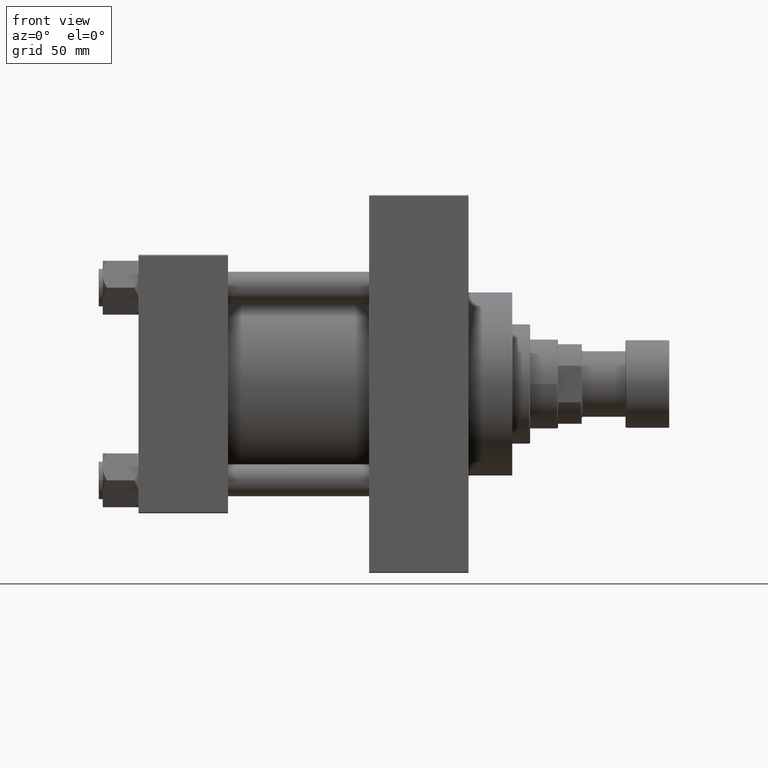
[diagram: clean part render]
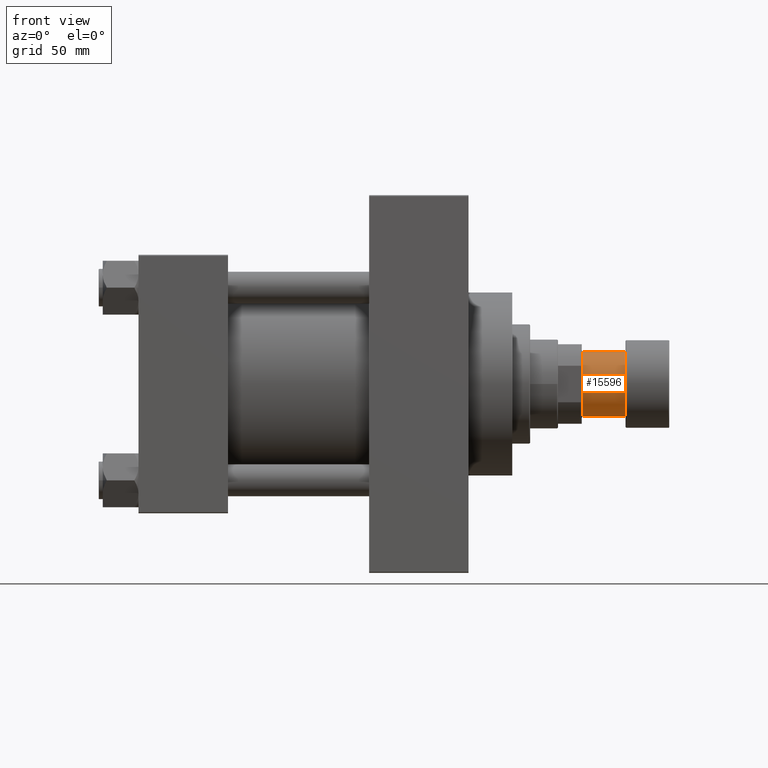
[diagram: same view with one face highlighted and labeled with its STEP entity id]
A machine part, front view. The second image highlights one B-rep face of the part: STEP entity #15596.
In plain terms, the highlighted cylindrical surface (edge-blend (fillet) strip) has radius 16.5 mm, axis along (1, 0, 0).
Its self-contained STEP definition (entity closure, byte-faithful):
#1106 = CARTESIAN_POINT ( 'NONE',  ( 16.50000000000000000, 0.000000000000000000, -43.50000000000000000 ) ) ;
#1710 = CARTESIAN_POINT ( 'NONE',  ( 0.000000000000000000, 0.000000000000000000, -43.50000000000000000 ) ) ;
#2150 = VERTEX_POINT ( 'NONE', #23403 ) ;
#2735 = CARTESIAN_POINT ( 'NONE',  ( 0.000000000000000000, 0.000000000000000000, -22.00000000000000000 ) ) ;
#2962 = DIRECTION ( 'NONE',  ( -1.000000000000000000, 0.000000000000000000, 0.000000000000000000 ) ) ;
#4675 = CARTESIAN_POINT ( 'NONE',  ( -16.50000000000000000, 2.020667218593133100E-15, -43.50000000000000000 ) ) ;
#6845 = DIRECTION ( 'NONE',  ( 0.000000000000000000, 0.000000000000000000, -1.000000000000000000 ) ) ;
#7408 = ORIENTED_EDGE ( 'NONE', *, *, #25987, .T. ) ;
#7620 = EDGE_LOOP ( 'NONE', ( #46968, #40856, #42681, #7408 ) ) ;
#11949 = FACE_OUTER_BOUND ( 'NONE', #7620, .T. ) ;
#12084 = CIRCLE ( 'NONE', #12886, 16.50000000000000000 ) ;
#12198 = CYLINDRICAL_SURFACE ( 'NONE', #43559, 16.50000000000000000 ) ;
#12753 = CIRCLE ( 'NONE', #46904, 16.50000000000000000 ) ;
#12886 = AXIS2_PLACEMENT_3D ( 'NONE', #18285, #6845, #13922 ) ;
#12898 = VERTEX_POINT ( 'NONE', #21429 ) ;
#13922 = DIRECTION ( 'NONE',  ( -1.000000000000000000, 0.000000000000000000, 0.000000000000000000 ) ) ;
#15551 = CARTESIAN_POINT ( 'NONE',  ( -16.50000000000000000, 2.020667218593133100E-15, -22.00000000000000000 ) ) ;
#15596 = ADVANCED_FACE ( 'NONE', ( #11949 ), #12198, .T. ) ;
#16950 = EDGE_CURVE ( 'NONE', #12898, #37010, #30530, .T. ) ;
#18285 = CARTESIAN_POINT ( 'NONE',  ( 0.000000000000000000, 0.000000000000000000, -43.50000000000000000 ) ) ;
#19533 = DIRECTION ( 'NONE',  ( -0.000000000000000000, -0.000000000000000000, 1.000000000000000000 ) ) ;
#21429 = CARTESIAN_POINT ( 'NONE',  ( 16.50000000000000000, 0.000000000000000000, -43.50000000000000000 ) ) ;
#23185 = LINE ( 'NONE', #4675, #28265 ) ;
#23403 = CARTESIAN_POINT ( 'NONE',  ( -16.50000000000000000, 2.020667218593133100E-15, -43.50000000000000000 ) ) ;
#25987 = EDGE_CURVE ( 'NONE', #37010, #38132, #12753, .T. ) ;
#27024 = DIRECTION ( 'NONE',  ( -0.000000000000000000, -0.000000000000000000, 1.000000000000000000 ) ) ;
#28265 = VECTOR ( 'NONE', #19533, 1000.000000000000000 ) ;
#30530 = LINE ( 'NONE', #1106, #47493 ) ;
#31772 = CARTESIAN_POINT ( 'NONE',  ( 16.50000000000000000, 0.000000000000000000, -22.00000000000000000 ) ) ;
#33766 = EDGE_CURVE ( 'NONE', #12898, #2150, #12084, .T. ) ;
#37010 = VERTEX_POINT ( 'NONE', #31772 ) ;
#38132 = VERTEX_POINT ( 'NONE', #15551 ) ;
#40856 = ORIENTED_EDGE ( 'NONE', *, *, #33766, .F. ) ;
#41847 = DIRECTION ( 'NONE',  ( 1.000000000000000000, 0.000000000000000000, 0.000000000000000000 ) ) ;
#42681 = ORIENTED_EDGE ( 'NONE', *, *, #16950, .T. ) ;
#43559 = AXIS2_PLACEMENT_3D ( 'NONE', #1710, #27024, #41847 ) ;
#45370 = DIRECTION ( 'NONE',  ( -0.000000000000000000, -0.000000000000000000, 1.000000000000000000 ) ) ;
#46904 = AXIS2_PLACEMENT_3D ( 'NONE', #2735, #47011, #2962 ) ;
#46968 = ORIENTED_EDGE ( 'NONE', *, *, #47103, .F. ) ;
#47011 = DIRECTION ( 'NONE',  ( 0.000000000000000000, 0.000000000000000000, -1.000000000000000000 ) ) ;
#47103 = EDGE_CURVE ( 'NONE', #2150, #38132, #23185, .T. ) ;
#47493 = VECTOR ( 'NONE', #45370, 1000.000000000000000 ) ;